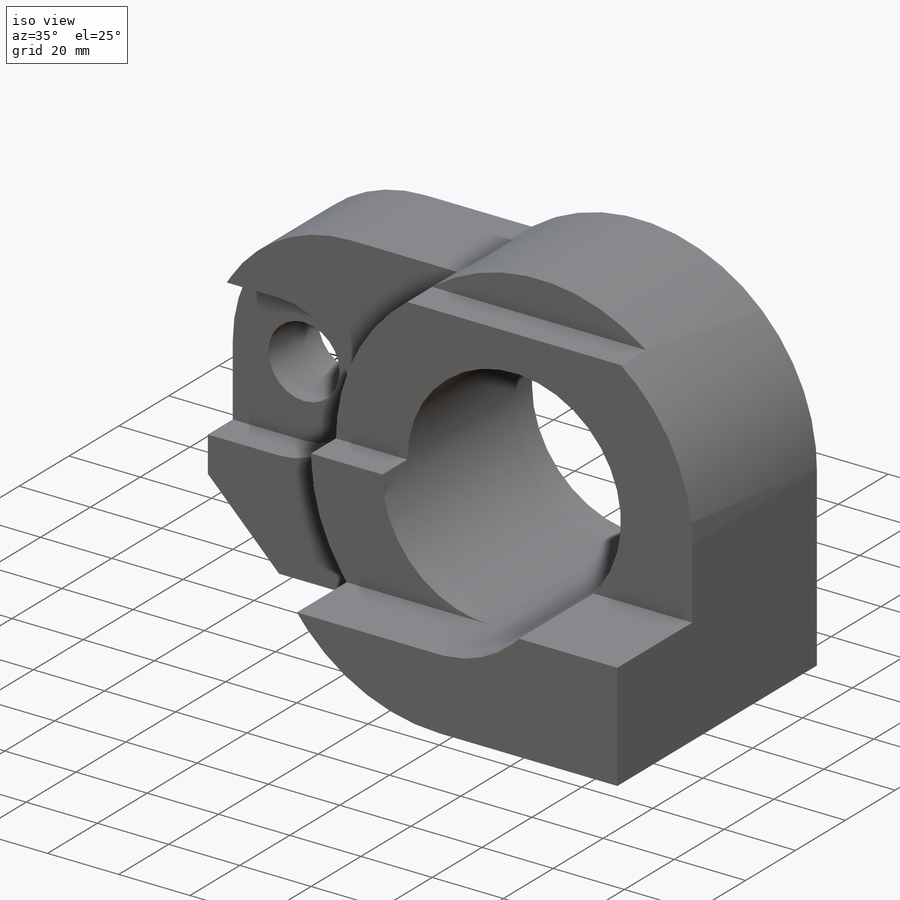
[diagram: iso view]
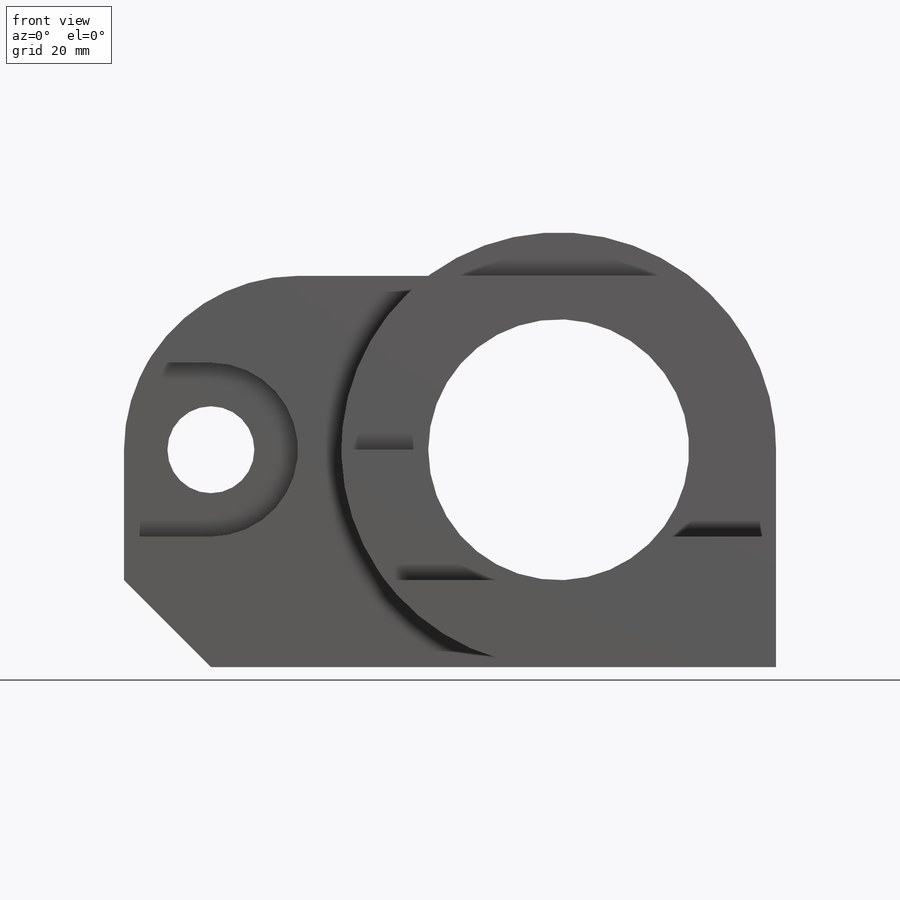
[diagram: front view]
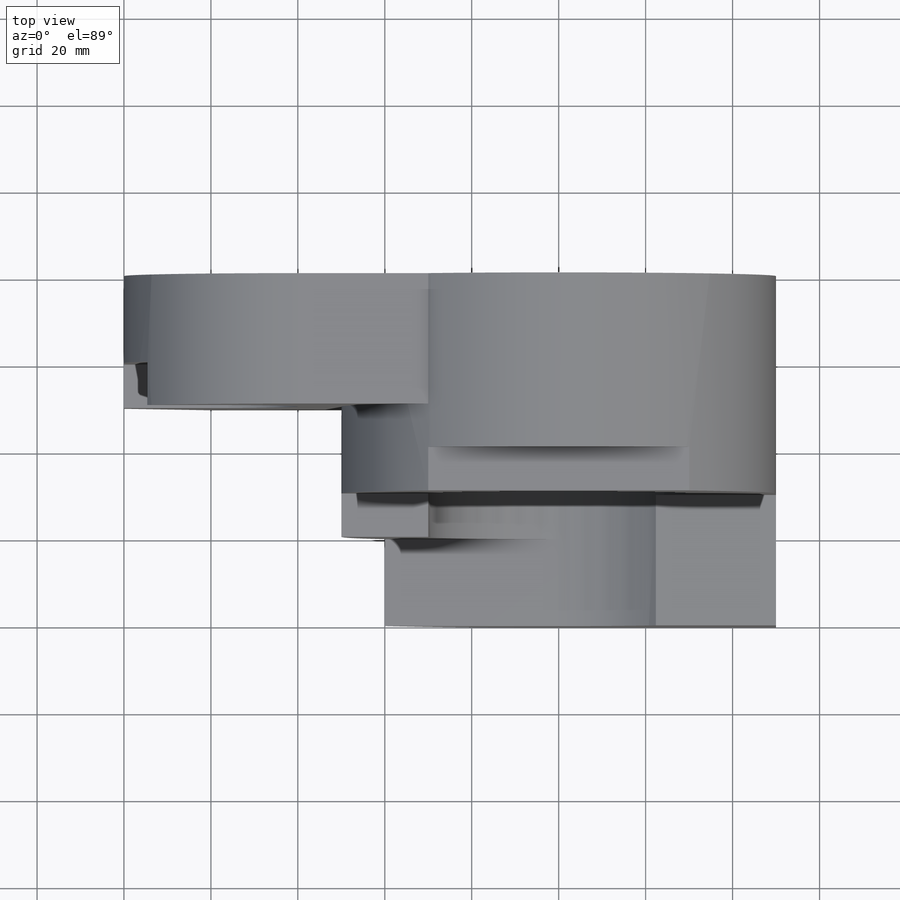
[diagram: top view]
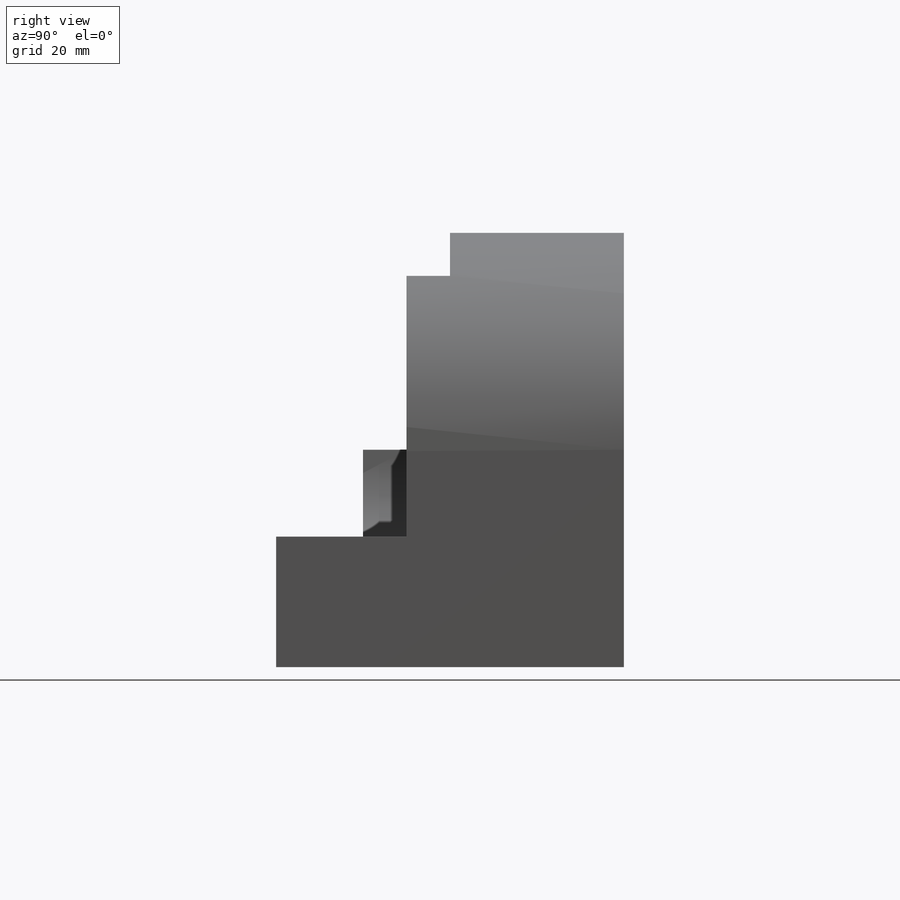
[diagram: right view]
SOLIDWORKS PART (.sldprt)
format: sldprt  version: not decoded by parser v0  size: 1,233,920 bytes
history: native  units: mm
features: sketch x26, extrude x17, cut_extrude x9, material x1 (+13 scaffold rows collapsed)
feature tree (66):
  scaffold x13  (default folders/planes/origin — collapsed)
  material  "Material <not specified>"
  sketch  "Sketch1"  dims[D1=60.0mm D2=100.0mm]
  extrude  "Boss-Extrude1"  Depth=40mm
  sketch  "Sketch2"  dims[c1.D1=30.0mm c1.D8=40.0mm c1.D10=~50.001083mm c1.D2=80.0mm c1.D3=40.0mm c1.D4=50.0mm c1.D5=50.0mm c1.D6=30.0mm c1.D7=120.0mm c2.D8=~30.358489mm c2.D9=~129.786048mm c3.D8=~79.929026mm c3.D1=90.0mm c3.D9=50.0mm]
  extrude  "Boss-Extrude2"  Depth=10mm
  sketch  "Sketch3"  dims[D1=29.999mm D2=20.0mm D3=50.0mm]
  extrude  "Boss-Extrude3"  Depth=20mm
  sketch  "Sketch5"  dims[D1=50.0mm]
  extrude  "Boss-Extrude4"  Depth=10mm
  sketch  "Sketch6"
  cut_extrude  "Cut-Extrude1"  Depth=10mm
  sketch  "Sketch7"
  extrude  "Boss-Extrude5"  Depth=10mm
  sketch  "Sketch8"  dims[c1.D1=40.0mm c1.D2=20.0mm c1.D3=20.0mm c1.D4=60.0mm c1.D5=40.0mm c1.D6=100.0mm c1.D7=~149.999994mm c2.D1=40.0mm c2.D4=30.0mm c2.D7=0.0mm]
  extrude  "Boss-Extrude7"  Depth=30mm
  sketch  "Sketch9"  dims[D1=20.0mm D2=50.0mm D3=20.0mm]
  cut_extrude  "Cut-Extrude3"  Depth=105mm
  sketch  "Sketch10"  dims[c1.D1=40.0mm c1.D2=40.0mm c2.D1=20.0mm c2.D2=40.0mm c2.D3=40.0mm]
  cut_extrude  "Cut-Extrude4"  Depth=105mm
  sketch  "Sketch11"  dims[D1=40.0mm D5=40.0mm D2=20.0mm D3=20.0mm D4=20.0mm]
  cut_extrude  "Cut-Extrude5"  Depth=10mm
  sketch  "Sketch12"  dims[D1=~36.676049mm]
  cut_extrude  "Cut-Extrude6"  Depth=23mm
  sketch  "Sketch13"  dims[D1=~5.545139mm]
  extrude  "Boss-Extrude11"  Depth=20mm
  sketch  "Sketch15"  dims[D1=~49.999994mm]
  extrude  "Boss-Extrude12"  Depth=40mm
  sketch  "Sketch16"  dims[D1=~23.465535mm]
  extrude  "Boss-Extrude13"  Depth=10mm
  sketch  "Sketch17"  dims[D1=20.0mm]
  extrude  "Boss-Extrude14"  Depth=10mm
  sketch  "Sketch18"  dims[D1=40.0mm]
  cut_extrude  "Cut-Extrude8"  Depth=20mm
  sketch  "Sketch19"  dims[c1.D2=50.0mm c1.D1=30.0mm c2.D2=~27.639318mm]
  extrude  "Boss-Extrude15"  Depth=20mm
  sketch  "Sketch22"  dims[c1.D1=~19.670972mm c1.D2=~12.595458mm c2.D1=10.0mm]
  cut_extrude  "Cut-Extrude15"  Depth=20mm
  sketch  "Sketch24"  dims[D1=~19.670972mm D2=10.0mm]
  extrude  "Boss-Extrude25"  Depth=15mm
  sketch  "Sketch25"  dims[c1.D1=~22.410322mm c1.D2=~11.909258mm c2.D1=0.0mm c2.D2=0.0mm]
  extrude  "Boss-Extrude27"  Depth=15mm
  sketch  "Sketch26"  dims[D1=~19.670972mm]
  extrude  "Boss-Extrude28"  Depth=15mm
  sketch  "Sketch27"  dims[D1=40.0mm]
  cut_extrude  "Cut-Extrude16"  Depth=10mm
  sketch  "Sketch28"  dims[D1=30.0mm]
  extrude  "Boss-Extrude29"  Depth=10mm
  sketch  "Sketch29"  dims[c1.D1=~25.629741mm c1.D2=~50.424356mm c2.D1=~25.212178mm c2.D2=~25.629741mm c2.D3=~28.282058mm c2.D4=~12.81487mm c2.D5=~28.282058mm c3.D5=~63.056636deg c4.D5=~12.81487mm c5.D5=90.0deg c6.D5=~73.858843mm]
  cut_extrude  "Cut-Extrude18"  Depth=10mm
  sketch  "Sketch30"  dims[D1=~50.424356mm]
  extrude  "Boss-Extrude30"  Depth=10mm
  sketch  "Sketch31"  dims[D1=18.0mm D2=~43.431735mm D3=~6.568262mm D4=~49.999994mm]
  extrude  "Boss-Extrude32"  Depth=42mm
decode coverage: 50 of 52 modeling features carry decoded parameters
note: ~ marks probable driven/reference dimensions
note: suppression state not decoded; provenance and decode notes live in map.json
